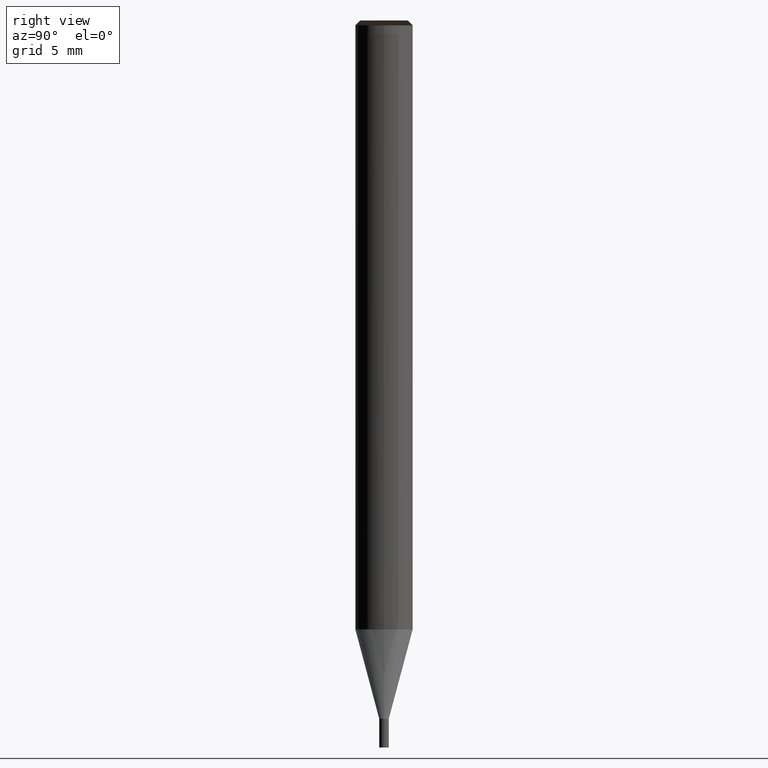
[diagram: clean part render]
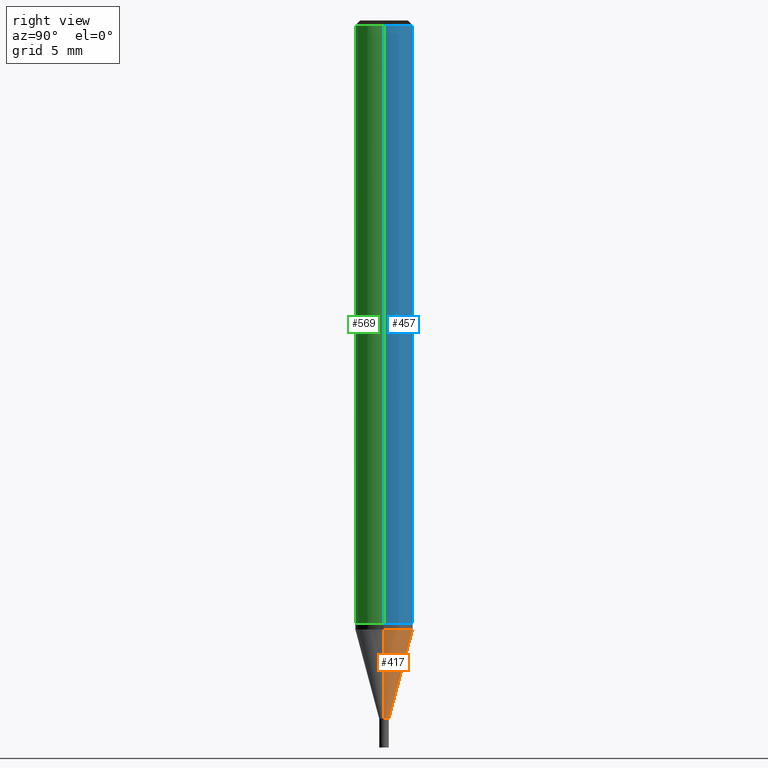
[diagram: same view with three faces highlighted in distinct colors, each labeled with its STEP entity id]
A machine part, right view with three faces highlighted in distinct colors.
Their STEP definitions:

[orange] entity #417 — the highlighted face is a freeform B-spline surface patch.
#224=CARTESIAN_POINT('',(0.25,0.0,-5.0));
#225=CARTESIAN_POINT('',(0.25,0.25,-5.0));
#226=CARTESIAN_POINT('',(0.0,0.25,-5.0));
#227=CARTESIAN_POINT('',(-0.25,0.25,-5.0));
#228=CARTESIAN_POINT('',(-0.25,0.0,-5.0));
#236=CARTESIAN_POINT('',(1.5,0.0,-0.334936490539));
#237=CARTESIAN_POINT('',(1.5,1.5,-0.334936490539));
#238=CARTESIAN_POINT('',(0.0,1.5,-0.334936490539));
#239=CARTESIAN_POINT('',(-1.5,1.5,-0.334936490539));
#240=CARTESIAN_POINT('',(-1.5,0.0,-0.334936490539));
#398=(
BOUNDED_SURFACE()
B_SPLINE_SURFACE(1,2,(
(#224,#225,#226,#227,#228),
(#236,#237,#238,#239,#240)
), .UNSPECIFIED.,.F.,.F.,.F.)
B_SPLINE_SURFACE_WITH_KNOTS((2,2),(3,2,3),(
0.0,1.0),(
0.0,0.5,1.0), .UNSPECIFIED.)
GEOMETRIC_REPRESENTATION_ITEM()
RATIONAL_B_SPLINE_SURFACE(((1.0,0.707106781187,1.0,0.707106781187,1.0),
(1.0,0.707106781187,1.0,0.707106781187,1.0)
))
REPRESENTATION_ITEM('')
SURFACE()
);
#399=(
BOUNDED_CURVE()
B_SPLINE_CURVE(2,(#228,#227,#226,#225,#224),.UNSPECIFIED.,.F.,.F.)
B_SPLINE_CURVE_WITH_KNOTS((3,2,3),
(0.0,0.5,1.0),.UNSPECIFIED.)
CURVE()
GEOMETRIC_REPRESENTATION_ITEM()
RATIONAL_B_SPLINE_CURVE((1.0,0.707106781187,1.0,0.707106781187,1.0))
REPRESENTATION_ITEM('')
);
#400=(
BOUNDED_CURVE()
B_SPLINE_CURVE(1,(#224,#236),.UNSPECIFIED.,.F.,.F.)
B_SPLINE_CURVE_WITH_KNOTS((2,2),
(0.0,1.0),.UNSPECIFIED.)
CURVE()
GEOMETRIC_REPRESENTATION_ITEM()
RATIONAL_B_SPLINE_CURVE((1.0,1.0))
REPRESENTATION_ITEM('')
);
#401=(
BOUNDED_CURVE()
B_SPLINE_CURVE(2,(#236,#237,#238,#239,#240),.UNSPECIFIED.,.F.,.F.)
B_SPLINE_CURVE_WITH_KNOTS((3,2,3),
(0.0,0.5,1.0),.UNSPECIFIED.)
CURVE()
GEOMETRIC_REPRESENTATION_ITEM()
RATIONAL_B_SPLINE_CURVE((1.0,0.707106781187,1.0,0.707106781187,1.0))
REPRESENTATION_ITEM('')
);
#402=(
BOUNDED_CURVE()
B_SPLINE_CURVE(1,(#240,#228),.UNSPECIFIED.,.F.,.F.)
B_SPLINE_CURVE_WITH_KNOTS((2,2),
(0.0,1.0),.UNSPECIFIED.)
CURVE()
GEOMETRIC_REPRESENTATION_ITEM()
RATIONAL_B_SPLINE_CURVE((1.0,1.0))
REPRESENTATION_ITEM('')
);
#403=VERTEX_POINT('',#224);
#404=VERTEX_POINT('',#228);
#405=VERTEX_POINT('',#236);
#406=VERTEX_POINT('',#240);
#407=EDGE_CURVE('',#404,#403,#399,.T.);
#408=EDGE_CURVE('',#403,#405,#400,.T.);
#409=EDGE_CURVE('',#405,#406,#401,.T.);
#410=EDGE_CURVE('',#406,#404,#402,.T.);
#411=ORIENTED_EDGE('',*,*,#407,.T.);
#412=ORIENTED_EDGE('',*,*,#408,.T.);
#413=ORIENTED_EDGE('',*,*,#409,.T.);
#414=ORIENTED_EDGE('',*,*,#410,.T.);
#415=EDGE_LOOP('',(#411,#412,#413,#414));
#416=FACE_OUTER_BOUND('',#415,.T.);
#417=ADVANCED_FACE('',(#416),#398,.T.);

[blue] entity #457 — the highlighted face is a freeform B-spline surface patch.
#241=CARTESIAN_POINT('',(1.5,0.0,0.0));
#242=CARTESIAN_POINT('',(1.5,1.5,0.0));
#243=CARTESIAN_POINT('',(0.0,1.5,0.0));
#244=CARTESIAN_POINT('',(-1.5,1.5,0.0));
#245=CARTESIAN_POINT('',(-1.5,0.0,0.0));
#246=CARTESIAN_POINT('',(1.5,0.0,31.25));
#247=CARTESIAN_POINT('',(1.5,1.5,31.25));
#248=CARTESIAN_POINT('',(0.0,1.5,31.25));
#249=CARTESIAN_POINT('',(-1.5,1.5,31.25));
#250=CARTESIAN_POINT('',(-1.5,0.0,31.25));
#438=(
BOUNDED_SURFACE()
B_SPLINE_SURFACE(1,2,(
(#241,#242,#243,#244,#245),
(#246,#247,#248,#249,#250)
), .UNSPECIFIED.,.F.,.F.,.F.)
B_SPLINE_SURFACE_WITH_KNOTS((2,2),(3,2,3),(
0.0,1.0),(
0.0,0.5,1.0), .UNSPECIFIED.)
GEOMETRIC_REPRESENTATION_ITEM()
RATIONAL_B_SPLINE_SURFACE(((1.0,0.707106781187,1.0,0.707106781187,1.0),
(1.0,0.707106781187,1.0,0.707106781187,1.0)
))
REPRESENTATION_ITEM('')
SURFACE()
);
#439=(
BOUNDED_CURVE()
B_SPLINE_CURVE(2,(#245,#244,#243,#242,#241),.UNSPECIFIED.,.F.,.F.)
B_SPLINE_CURVE_WITH_KNOTS((3,2,3),
(0.0,0.5,1.0),.UNSPECIFIED.)
CURVE()
GEOMETRIC_REPRESENTATION_ITEM()
RATIONAL_B_SPLINE_CURVE((1.0,0.707106781187,1.0,0.707106781187,1.0))
REPRESENTATION_ITEM('')
);
#440=(
BOUNDED_CURVE()
B_SPLINE_CURVE(1,(#241,#246),.UNSPECIFIED.,.F.,.F.)
B_SPLINE_CURVE_WITH_KNOTS((2,2),
(0.0,1.0),.UNSPECIFIED.)
CURVE()
GEOMETRIC_REPRESENTATION_ITEM()
RATIONAL_B_SPLINE_CURVE((1.0,1.0))
REPRESENTATION_ITEM('')
);
#441=(
BOUNDED_CURVE()
B_SPLINE_CURVE(2,(#246,#247,#248,#249,#250),.UNSPECIFIED.,.F.,.F.)
B_SPLINE_CURVE_WITH_KNOTS((3,2,3),
(0.0,0.5,1.0),.UNSPECIFIED.)
CURVE()
GEOMETRIC_REPRESENTATION_ITEM()
RATIONAL_B_SPLINE_CURVE((1.0,0.707106781187,1.0,0.707106781187,1.0))
REPRESENTATION_ITEM('')
);
#442=(
BOUNDED_CURVE()
B_SPLINE_CURVE(1,(#250,#245),.UNSPECIFIED.,.F.,.F.)
B_SPLINE_CURVE_WITH_KNOTS((2,2),
(0.0,1.0),.UNSPECIFIED.)
CURVE()
GEOMETRIC_REPRESENTATION_ITEM()
RATIONAL_B_SPLINE_CURVE((1.0,1.0))
REPRESENTATION_ITEM('')
);
#443=VERTEX_POINT('',#241);
#444=VERTEX_POINT('',#245);
#445=VERTEX_POINT('',#246);
#446=VERTEX_POINT('',#250);
#447=EDGE_CURVE('',#444,#443,#439,.T.);
#448=EDGE_CURVE('',#443,#445,#440,.T.);
#449=EDGE_CURVE('',#445,#446,#441,.T.);
#450=EDGE_CURVE('',#446,#444,#442,.T.);
#451=ORIENTED_EDGE('',*,*,#447,.T.);
#452=ORIENTED_EDGE('',*,*,#448,.T.);
#453=ORIENTED_EDGE('',*,*,#449,.T.);
#454=ORIENTED_EDGE('',*,*,#450,.T.);
#455=EDGE_LOOP('',(#451,#452,#453,#454));
#456=FACE_OUTER_BOUND('',#455,.T.);
#457=ADVANCED_FACE('',(#456),#438,.T.);

[green] entity #569 — the highlighted face is a freeform B-spline surface patch.
#241=CARTESIAN_POINT('',(1.5,0.0,0.0));
#245=CARTESIAN_POINT('',(-1.5,0.0,0.0));
#246=CARTESIAN_POINT('',(1.5,0.0,31.25));
#250=CARTESIAN_POINT('',(-1.5,0.0,31.25));
#260=CARTESIAN_POINT('',(-1.5,-1.5,0.0));
#261=CARTESIAN_POINT('',(0.0,-1.5,0.0));
#262=CARTESIAN_POINT('',(1.5,-1.5,0.0));
#263=CARTESIAN_POINT('',(-1.5,-1.5,31.25));
#264=CARTESIAN_POINT('',(0.0,-1.5,31.25));
#265=CARTESIAN_POINT('',(1.5,-1.5,31.25));
#550=(
BOUNDED_SURFACE()
B_SPLINE_SURFACE(1,2,(
(#245,#260,#261,#262,#241),
(#250,#263,#264,#265,#246)
), .UNSPECIFIED.,.F.,.F.,.F.)
B_SPLINE_SURFACE_WITH_KNOTS((2,2),(3,2,3),(
0.0,1.0),(
0.0,0.5,1.0), .UNSPECIFIED.)
GEOMETRIC_REPRESENTATION_ITEM()
RATIONAL_B_SPLINE_SURFACE(((1.0,0.707106781187,1.0,0.707106781187,1.0),
(1.0,0.707106781187,1.0,0.707106781187,1.0)
))
REPRESENTATION_ITEM('')
SURFACE()
);
#551=(
BOUNDED_CURVE()
B_SPLINE_CURVE(2,(#241,#262,#261,#260,#245),.UNSPECIFIED.,.F.,.F.)
B_SPLINE_CURVE_WITH_KNOTS((3,2,3),
(0.0,0.5,1.0),.UNSPECIFIED.)
CURVE()
GEOMETRIC_REPRESENTATION_ITEM()
RATIONAL_B_SPLINE_CURVE((1.0,0.707106781187,1.0,0.707106781187,1.0))
REPRESENTATION_ITEM('')
);
#552=(
BOUNDED_CURVE()
B_SPLINE_CURVE(1,(#245,#250),.UNSPECIFIED.,.F.,.F.)
B_SPLINE_CURVE_WITH_KNOTS((2,2),
(0.0,1.0),.UNSPECIFIED.)
CURVE()
GEOMETRIC_REPRESENTATION_ITEM()
RATIONAL_B_SPLINE_CURVE((1.0,1.0))
REPRESENTATION_ITEM('')
);
#553=(
BOUNDED_CURVE()
B_SPLINE_CURVE(2,(#250,#263,#264,#265,#246),.UNSPECIFIED.,.F.,.F.)
B_SPLINE_CURVE_WITH_KNOTS((3,2,3),
(0.0,0.5,1.0),.UNSPECIFIED.)
CURVE()
GEOMETRIC_REPRESENTATION_ITEM()
RATIONAL_B_SPLINE_CURVE((1.0,0.707106781187,1.0,0.707106781187,1.0))
REPRESENTATION_ITEM('')
);
#554=(
BOUNDED_CURVE()
B_SPLINE_CURVE(1,(#246,#241),.UNSPECIFIED.,.F.,.F.)
B_SPLINE_CURVE_WITH_KNOTS((2,2),
(0.0,1.0),.UNSPECIFIED.)
CURVE()
GEOMETRIC_REPRESENTATION_ITEM()
RATIONAL_B_SPLINE_CURVE((1.0,1.0))
REPRESENTATION_ITEM('')
);
#555=VERTEX_POINT('',#241);
#556=VERTEX_POINT('',#245);
#557=VERTEX_POINT('',#246);
#558=VERTEX_POINT('',#250);
#559=EDGE_CURVE('',#555,#556,#551,.T.);
#560=EDGE_CURVE('',#556,#558,#552,.T.);
#561=EDGE_CURVE('',#558,#557,#553,.T.);
#562=EDGE_CURVE('',#557,#555,#554,.T.);
#563=ORIENTED_EDGE('',*,*,#559,.T.);
#564=ORIENTED_EDGE('',*,*,#560,.T.);
#565=ORIENTED_EDGE('',*,*,#561,.T.);
#566=ORIENTED_EDGE('',*,*,#562,.T.);
#567=EDGE_LOOP('',(#563,#564,#565,#566));
#568=FACE_OUTER_BOUND('',#567,.T.);
#569=ADVANCED_FACE('',(#568),#550,.T.);